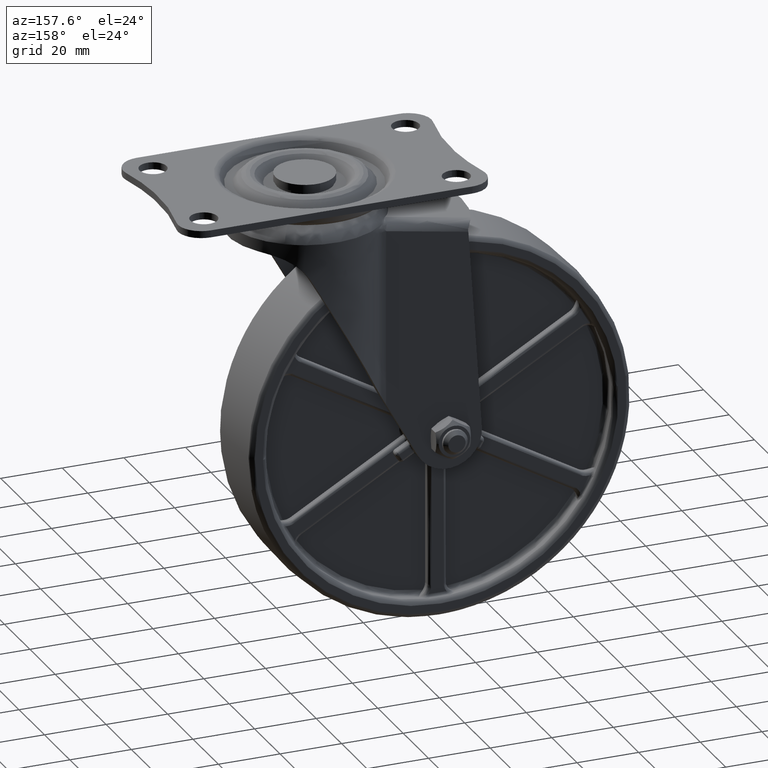
[diagram: clean part render]
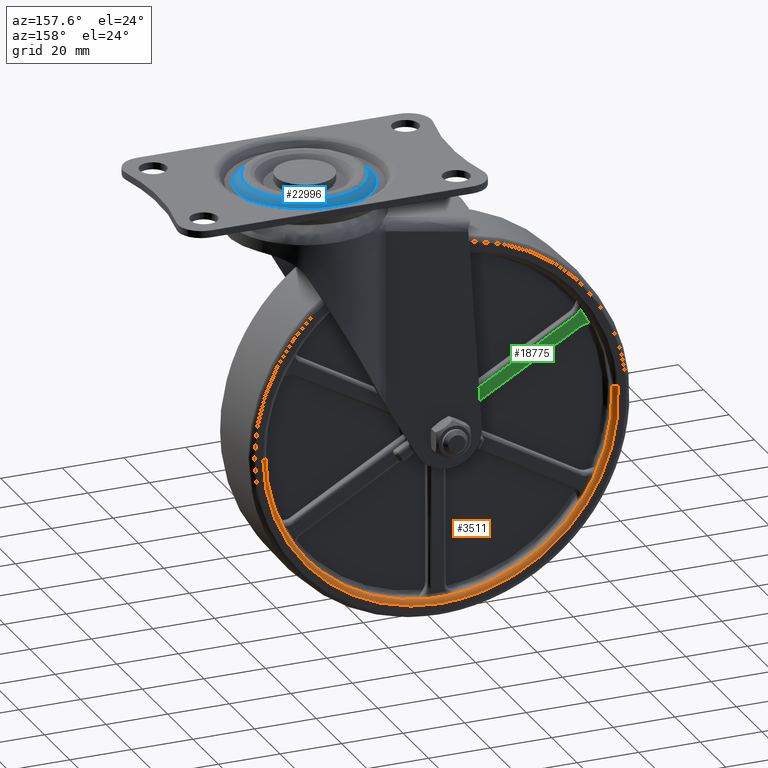
[diagram: same view with three faces highlighted in distinct colors, each labeled with its STEP entity id]
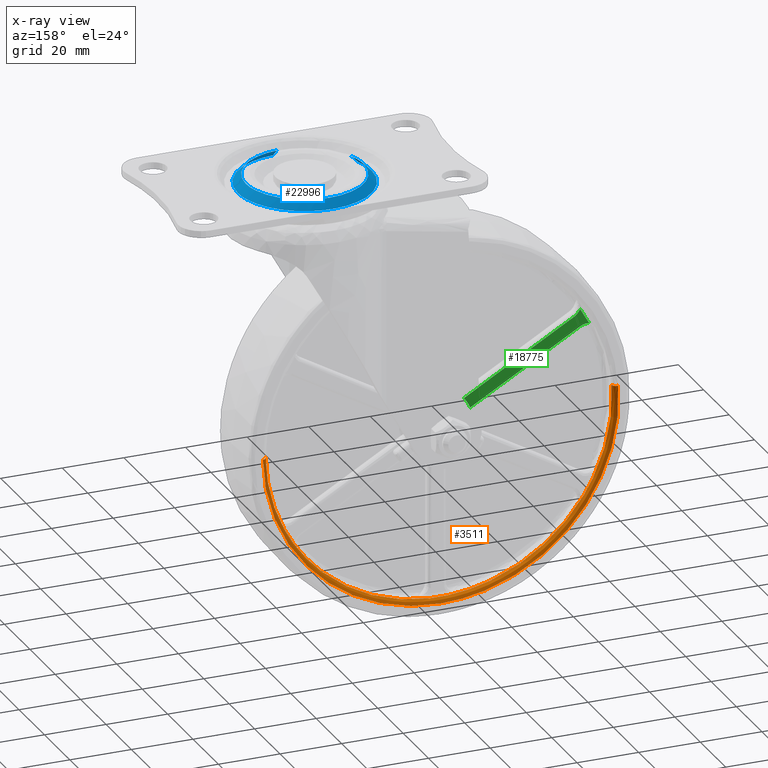
[diagram: x-ray of the same camera — body ghosted, the three highlighted faces saturated]
A machine part, auxiliary view with three faces highlighted in distinct colors.
The next image is the same camera in x-ray (body ghosted, the three faces saturated) — at least one of them is partly hidden behind the body in this view.
Their STEP definitions:

[orange] entity #3511 — the highlighted face is a freeform B-spline surface patch.
#3313=CARTESIAN_POINT('',(-56.109316482001937,10.895694304718960,3.922229964776119));
#3314=CARTESIAN_POINT('',(-56.221568910168422,10.895694304718960,2.316406982842156));
#3315=CARTESIAN_POINT('',(-56.241796987464895,10.895694304718962,0.706792469418074));
#3316=CARTESIAN_POINT('',(-56.948589456882956,10.895694304718960,-55.535004518046804));
#3317=CARTESIAN_POINT('',(-0.706792469418077,10.895694304718962,-56.241796987464895));
#3318=CARTESIAN_POINT('',(55.535004518046804,10.895694304718960,-56.948589456882956));
#3319=CARTESIAN_POINT('',(56.241796987464895,10.895694304718962,-0.706792469418080));
#3320=CARTESIAN_POINT('',(-55.989671686831315,12.616306535089228,3.913866391127913));
#3321=CARTESIAN_POINT('',(-56.101684753344230,12.616306535089230,2.311467588524587));
#3322=CARTESIAN_POINT('',(-56.121869697266099,12.616306535089230,0.705285339309675));
#3323=CARTESIAN_POINT('',(-56.827155036575761,12.616306535089226,-55.416584357956424));
#3324=CARTESIAN_POINT('',(-0.705285339309679,12.616306535089230,-56.121869697266099));
#3325=CARTESIAN_POINT('',(55.416584357956424,12.616306535089226,-56.827155036575782));
#3326=CARTESIAN_POINT('',(56.121869697266099,12.616306535089230,-0.705285339309682));
#3327=CARTESIAN_POINT('',(-57.706095338485859,12.496368998980220,4.033850178150686));
#3328=CARTESIAN_POINT('',(-57.821542286121215,12.496368998980227,2.382328115465480));
#3329=CARTESIAN_POINT('',(-57.842346021225673,12.496368998980227,0.726906620540389));
#3330=CARTESIAN_POINT('',(-58.569252641766049,12.496368998980223,-57.115439400685261));
#3331=CARTESIAN_POINT('',(-0.726906620540393,12.496368998980227,-57.842346021225673));
#3332=CARTESIAN_POINT('',(57.115439400685261,12.496368998980223,-58.569252641766056));
#3333=CARTESIAN_POINT('',(57.842346021225673,12.496368998980227,-0.726906620540397));
#3341=(BOUNDED_SURFACE()B_SPLINE_SURFACE(2,2,((#3313,#3320,#3327),(#3314,#3321,#3328),(#3315,#3322,#3329),(#3316,#3323,#3330),(#3317,#3324,#3331),(#3318,#3325,#3332),(#3319,#3326,#3333)),.UNSPECIFIED.,.F.,.F.,.U.)B_SPLINE_SURFACE_WITH_KNOTS((3,2,2,3),(3,3),(0.0,3.833752513351001,99.677656750995880,195.521560988640690),(0.0,2.733561761093828),.UNSPECIFIED.)GEOMETRIC_REPRESENTATION_ITEM()RATIONAL_B_SPLINE_SURFACE(((0.889999308491947,0.584039666282875,0.889999491412450),(0.899812879610098,0.590479575557186,0.899813064547572),(0.910479803853933,0.597479476361818,0.910479990983768),(0.643806443438514,0.422481789355229,0.643806575759289),(0.910479803853933,0.597479476361818,0.910479990983768),(0.643806443438514,0.422481789355229,0.643806575759289),(0.910479803853933,0.597479476361818,0.910479990983768)))REPRESENTATION_ITEM('')SURFACE());
#3342=CARTESIAN_POINT('',(-57.602042656929051,12.500000000000000,4.026579740403182));
#3343=VERTEX_POINT('',#3342);
#3344=CARTESIAN_POINT('',(0.0,12.500000000000000,-57.742607000000000));
#3345=VERTEX_POINT('',#3344);
#3346=CARTESIAN_POINT('',(-57.602042656929051,12.500000000000002,4.026579740403182));
#3347=CARTESIAN_POINT('',(-57.742607000000000,12.500000000000002,2.015743358823668));
#3348=CARTESIAN_POINT('',(-57.742607000000000,12.500000000000000,1.855278E-015));
#3349=CARTESIAN_POINT('',(-57.742607000000000,12.500000000000000,-57.742607000000000));
#3350=CARTESIAN_POINT('',(0.0,12.500000000000000,-57.742607000000000));
#3358=(BOUNDED_CURVE()B_SPLINE_CURVE(2,(#3346,#3347,#3348,#3349,#3350),.UNSPECIFIED.,.F.,.U.)B_SPLINE_CURVE_WITH_KNOTS((3,2,3),(0.737833686534226,0.750000000000000,1.0),.UNSPECIFIED.)CURVE()GEOMETRIC_REPRESENTATION_ITEM()RATIONAL_B_SPLINE_CURVE((0.972879876385145,0.985746277151664,1.0,0.707106781186548,1.0))REPRESENTATION_ITEM(''));
#3359=EDGE_CURVE('',#3343,#3345,#3358,.T.);
#3360=ORIENTED_EDGE('',*,*,#3359,.F.);
#3361=CARTESIAN_POINT('',(-56.105694150497627,11.000000000136920,3.921979863189565));
#3362=VERTEX_POINT('',#3361);
#3363=CARTESIAN_POINT('',(-56.105694150497627,11.000000000136918,3.921979863189565));
#3364=CARTESIAN_POINT('',(-56.105694150770780,12.499999991341772,3.921979863208824));
#3365=CARTESIAN_POINT('',(-57.602042656929051,12.499999999999996,4.026579740403182));
#3373=(BOUNDED_CURVE()B_SPLINE_CURVE(2,(#3363,#3364,#3365),.UNSPECIFIED.,.F.,.U.)B_SPLINE_CURVE_WITH_KNOTS((3,3),(-1.725134643094601,-0.274865362637500),.UNSPECIFIED.)CURVE()GEOMETRIC_REPRESENTATION_ITEM()RATIONAL_B_SPLINE_CURVE((0.863472075307408,0.610566960926146,0.863472073308224))REPRESENTATION_ITEM(''));
#3374=EDGE_CURVE('',#3362,#3343,#3373,.T.);
#3375=ORIENTED_EDGE('',*,*,#3374,.F.);
#3376=CARTESIAN_POINT('',(-50.125580031458398,11.0,-25.507980489766400));
#3377=VERTEX_POINT('',#3376);
#3378=CARTESIAN_POINT('',(-56.105694150497627,11.000000000136922,3.921979863189565));
#3379=CARTESIAN_POINT('',(-57.192226461886982,11.000000000000002,-11.621355817751464));
#3380=CARTESIAN_POINT('',(-50.125580031458433,11.0,-25.507980489766410));
#3388=(BOUNDED_CURVE()B_SPLINE_CURVE(2,(#3378,#3379,#3380),.UNSPECIFIED.,.F.,.U.)B_SPLINE_CURVE_WITH_KNOTS((3,3),(0.427214556088563,1.0),.UNSPECIFIED.)CURVE()GEOMETRIC_REPRESENTATION_ITEM()RATIONAL_B_SPLINE_CURVE((0.946771655131407,0.937703029882766,1.0))REPRESENTATION_ITEM(''));
#3389=EDGE_CURVE('',#3362,#3377,#3388,.T.);
#3390=ORIENTED_EDGE('',*,*,#3389,.T.);
#3391=CARTESIAN_POINT('',(-47.153349119104803,11.0,-30.656035441789751));
#3392=VERTEX_POINT('',#3391);
#3393=CARTESIAN_POINT('',(-50.125580031458433,11.0,-25.507980489766410));
#3394=CARTESIAN_POINT('',(-48.775683538732736,11.0,-28.160654020995320));
#3395=CARTESIAN_POINT('',(-47.153349119104782,11.0,-30.656035441789740));
#3403=(BOUNDED_CURVE()B_SPLINE_CURVE(2,(#3393,#3394,#3395),.UNSPECIFIED.,.F.,.U.)CURVE()GEOMETRIC_REPRESENTATION_ITEM()QUASI_UNIFORM_CURVE()RATIONAL_B_SPLINE_CURVE((1.0,0.998602641793546,1.0))REPRESENTATION_ITEM(''));
#3404=EDGE_CURVE('',#3377,#3392,#3403,.T.);
#3405=ORIENTED_EDGE('',*,*,#3404,.T.);
#3406=CARTESIAN_POINT('',(-2.972230912353660,11.0,-56.164015931556207));
#3407=VERTEX_POINT('',#3406);
#3408=CARTESIAN_POINT('',(-47.153349119104782,11.0,-30.656035441789740));
#3409=CARTESIAN_POINT('',(-31.553059736877170,10.999999999999998,-54.651502598527102));
#3410=CARTESIAN_POINT('',(-2.972230912353648,11.0,-56.164015931556200));
#3418=(BOUNDED_CURVE()B_SPLINE_CURVE(2,(#3408,#3409,#3410),.UNSPECIFIED.,.F.,.U.)CURVE()GEOMETRIC_REPRESENTATION_ITEM()QUASI_UNIFORM_CURVE()RATIONAL_B_SPLINE_CURVE((1.0,0.891238559255591,1.0))REPRESENTATION_ITEM(''));
#3419=EDGE_CURVE('',#3392,#3407,#3418,.T.);
#3420=ORIENTED_EDGE('',*,*,#3419,.T.);
#3421=CARTESIAN_POINT('',(2.972230912353665,11.0,-56.164015931556207));
#3422=VERTEX_POINT('',#3421);
#3423=CARTESIAN_POINT('',(-2.972230912353648,11.0,-56.164015931556200));
#3424=CARTESIAN_POINT('',(2.255141E-014,11.000000000000002,-56.321308041990690));
#3425=CARTESIAN_POINT('',(2.972230912353671,11.0,-56.164015931556200));
#3433=(BOUNDED_CURVE()B_SPLINE_CURVE(2,(#3423,#3424,#3425),.UNSPECIFIED.,.F.,.U.)CURVE()GEOMETRIC_REPRESENTATION_ITEM()QUASI_UNIFORM_CURVE()RATIONAL_B_SPLINE_CURVE((1.0,0.998602641793546,1.0))REPRESENTATION_ITEM(''));
#3434=EDGE_CURVE('',#3407,#3422,#3433,.T.);
#3435=ORIENTED_EDGE('',*,*,#3434,.T.);
#3436=CARTESIAN_POINT('',(47.153349119104803,11.0,-30.656035441789751));
#3437=VERTEX_POINT('',#3436);
#3438=CARTESIAN_POINT('',(2.972230912353665,11.0,-56.164015931556200));
#3439=CARTESIAN_POINT('',(31.553059736877174,11.0,-54.651502598527088));
#3440=CARTESIAN_POINT('',(47.153349119104789,11.0,-30.656035441789740));
#3448=(BOUNDED_CURVE()B_SPLINE_CURVE(2,(#3438,#3439,#3440),.UNSPECIFIED.,.F.,.U.)CURVE()GEOMETRIC_REPRESENTATION_ITEM()QUASI_UNIFORM_CURVE()RATIONAL_B_SPLINE_CURVE((1.0,0.891238559255591,1.0))REPRESENTATION_ITEM(''));
#3449=EDGE_CURVE('',#3422,#3437,#3448,.T.);
#3450=ORIENTED_EDGE('',*,*,#3449,.T.);
#3451=CARTESIAN_POINT('',(50.125580031458398,11.0,-25.507980489766449));
#3452=VERTEX_POINT('',#3451);
#3453=CARTESIAN_POINT('',(47.153349119104789,11.0,-30.656035441789740));
#3454=CARTESIAN_POINT('',(48.775683538732757,10.999999999999998,-28.160654020995295));
#3455=CARTESIAN_POINT('',(50.125580031458419,11.0,-25.507980489766460));
#3463=(BOUNDED_CURVE()B_SPLINE_CURVE(2,(#3453,#3454,#3455),.UNSPECIFIED.,.F.,.U.)CURVE()GEOMETRIC_REPRESENTATION_ITEM()QUASI_UNIFORM_CURVE()RATIONAL_B_SPLINE_CURVE((1.0,0.998602641793547,1.0))REPRESENTATION_ITEM(''));
#3464=EDGE_CURVE('',#3437,#3452,#3463,.T.);
#3465=ORIENTED_EDGE('',*,*,#3464,.T.);
#3466=CARTESIAN_POINT('',(56.238166320184853,11.000000000303331,-0.706746842705730));
#3467=VERTEX_POINT('',#3466);
#3468=CARTESIAN_POINT('',(50.125580031458419,11.0,-25.507980489766460));
#3469=CARTESIAN_POINT('',(56.073371508263527,11.0,-13.820011001134066));
#3470=CARTESIAN_POINT('',(56.238166320184845,11.000000000303327,-0.706746842705730));
#3478=(BOUNDED_CURVE()B_SPLINE_CURVE(2,(#3468,#3469,#3470),.UNSPECIFIED.,.F.,.U.)B_SPLINE_CURVE_WITH_KNOTS((3,3),(0.0,0.486899397519960),.UNSPECIFIED.)CURVE()GEOMETRIC_REPRESENTATION_ITEM()RATIONAL_B_SPLINE_CURVE((1.0,0.947044120028145,0.945656612163161))REPRESENTATION_ITEM(''));
#3479=EDGE_CURVE('',#3452,#3467,#3478,.T.);
#3480=ORIENTED_EDGE('',*,*,#3479,.T.);
#3481=CARTESIAN_POINT('',(57.738047871899283,12.500000000000000,-0.725595902805529));
#3482=VERTEX_POINT('',#3481);
#3483=CARTESIAN_POINT('',(56.238166320184845,11.000000000303327,-0.706746842705730));
#3484=CARTESIAN_POINT('',(56.238166320791450,12.499999970826629,-0.706746842713353));
#3485=CARTESIAN_POINT('',(57.738047871899283,12.499999999999998,-0.725595902805529));
#3493=(BOUNDED_CURVE()B_SPLINE_CURVE(2,(#3483,#3484,#3485),.UNSPECIFIED.,.F.,.U.)B_SPLINE_CURVE_WITH_KNOTS((3,3),(-1.725134642867066,-0.274865376662953),.UNSPECIFIED.)CURVE()GEOMETRIC_REPRESENTATION_ITEM()RATIONAL_B_SPLINE_CURVE((0.883342149505079,0.624617227759674,0.883342142536852))REPRESENTATION_ITEM(''));
#3494=EDGE_CURVE('',#3467,#3482,#3493,.T.);
#3495=ORIENTED_EDGE('',*,*,#3494,.T.);
#3496=CARTESIAN_POINT('',(0.0,12.500000000000000,-57.742607000000000));
#3497=CARTESIAN_POINT('',(57.021513275544734,12.499999999999998,-57.742607000000007));
#3498=CARTESIAN_POINT('',(57.738047871899283,12.500000000000002,-0.725595902805529));
#3506=(BOUNDED_CURVE()B_SPLINE_CURVE(2,(#3496,#3497,#3498),.UNSPECIFIED.,.F.,.U.)B_SPLINE_CURVE_WITH_KNOTS((3,3),(0.0,0.247784295918938),.UNSPECIFIED.)CURVE()GEOMETRIC_REPRESENTATION_ITEM()RATIONAL_B_SPLINE_CURVE((1.0,0.709702639987509,0.994854295637589))REPRESENTATION_ITEM(''));
#3507=EDGE_CURVE('',#3345,#3482,#3506,.T.);
#3508=ORIENTED_EDGE('',*,*,#3507,.F.);
#3509=EDGE_LOOP('',(#3360,#3375,#3390,#3405,#3420,#3435,#3450,#3465,#3480,#3495,#3508));
#3510=FACE_OUTER_BOUND('',#3509,.T.);
#3511=ADVANCED_FACE('',(#3510),#3341,.T.);

[blue] entity #22996 — the highlighted face is a freeform B-spline surface patch.
#22830=CARTESIAN_POINT('',(21.147844019462269,-6.705316435115614,84.979582080494708));
#22831=CARTESIAN_POINT('',(20.140563976395839,-4.023545840258584,84.979582080494723));
#22832=CARTESIAN_POINT('',(19.965678219664490,-1.164188992872753,84.979582080494708));
#22833=CARTESIAN_POINT('',(18.801489226791741,17.870132787462762,84.979582080494708));
#22834=CARTESIAN_POINT('',(37.835811007127248,19.034321780335510,84.979582080494708));
#22835=CARTESIAN_POINT('',(56.870132787462751,20.198510773208262,84.979582080494708));
#22836=CARTESIAN_POINT('',(58.034321780335503,1.164188992872753,84.979582080494708));
#22837=CARTESIAN_POINT('',(59.198510773208255,-17.870132787462762,84.979582080494708));
#22838=CARTESIAN_POINT('',(40.164188992872752,-19.034321780335510,84.979582080494708));
#22839=CARTESIAN_POINT('',(18.576152990161336,-7.671250305714221,82.232470325841035));
#22840=CARTESIAN_POINT('',(17.423769293868276,-4.603157443173919,82.232470325841035));
#22841=CARTESIAN_POINT('',(17.223690382190899,-1.331896153433399,82.232470325841021));
#22842=CARTESIAN_POINT('',(15.891794228757501,20.444413464375707,82.232470325841035));
#22843=CARTESIAN_POINT('',(37.668103846566602,21.776309617809108,82.232470325841021));
#22844=CARTESIAN_POINT('',(59.444413464375700,23.108205771242503,82.232470325841035));
#22845=CARTESIAN_POINT('',(60.776309617809112,1.331896153433399,82.232470325841021));
#22846=CARTESIAN_POINT('',(62.108205771242517,-20.444413464375707,82.232470325841035));
#22847=CARTESIAN_POINT('',(40.331896153433398,-21.776309617809108,82.232470325841021));
#22855=(BOUNDED_SURFACE()B_SPLINE_SURFACE(2,1,((#22830,#22839),(#22831,#22840),(#22832,#22841),(#22833,#22842),(#22834,#22843),(#22835,#22844),(#22836,#22845),(#22837,#22846),(#22838,#22847)),.UNSPECIFIED.,.F.,.F.,.U.)B_SPLINE_SURFACE_WITH_KNOTS((3,2,2,2,3),(2,2),(0.0,7.229518735460286,43.377112412761718,79.524706090063148,115.672299767364610),(0.0,3.885002700785799),.UNSPECIFIED.)GEOMETRIC_REPRESENTATION_ITEM()RATIONAL_B_SPLINE_SURFACE(((0.906274169979695,0.906274169979695),(0.941421356237309,0.941421356237309),(1.0,1.0),(0.707106781186548,0.707106781186548),(1.0,1.0),(0.707106781186548,0.707106781186548),(1.0,1.0),(0.707106781186548,0.707106781186548),(1.0,1.0)))REPRESENTATION_ITEM('')SURFACE());
#22856=CARTESIAN_POINT('',(21.086649701054650,-6.728301181363504,84.914213562342240));
#22857=VERTEX_POINT('',#22856);
#22858=CARTESIAN_POINT('',(19.864740510808900,0.0,84.914213562373206));
#22859=VERTEX_POINT('',#22858);
#22860=CARTESIAN_POINT('',(21.086649701054647,-6.728301181363504,84.914213562342240));
#22861=CARTESIAN_POINT('',(19.864740510808897,-3.475104457878975,84.914213562373206));
#22862=CARTESIAN_POINT('',(19.864740510808900,0.0,84.914213562373206));
#22870=(BOUNDED_CURVE()B_SPLINE_CURVE(2,(#22860,#22861,#22862),.UNSPECIFIED.,.F.,.U.)B_SPLINE_CURVE_WITH_KNOTS((3,3),(0.440284170893511,0.500000000000000),.UNSPECIFIED.)CURVE()GEOMETRIC_REPRESENTATION_ITEM()RATIONAL_B_SPLINE_CURVE((0.893499554629159,0.930038554395545,1.0))REPRESENTATION_ITEM(''));
#22871=EDGE_CURVE('',#22857,#22859,#22870,.T.);
#22872=ORIENTED_EDGE('',*,*,#22871,.T.);
#22873=CARTESIAN_POINT('',(27.216632078942698,15.076816506009219,84.914213567593961));
#22874=VERTEX_POINT('',#22873);
#22875=CARTESIAN_POINT('',(19.864740510808900,0.0,84.914213562373206));
#22876=CARTESIAN_POINT('',(19.864740510808904,9.330905681237470,84.914213562373206));
#22877=CARTESIAN_POINT('',(27.216632078942702,15.076816506009225,84.914213567593961));
#22885=(BOUNDED_CURVE()B_SPLINE_CURVE(2,(#22875,#22876,#22877),.UNSPECIFIED.,.F.,.U.)B_SPLINE_CURVE_WITH_KNOTS((3,3),(0.500000000000000,0.643432082111854),.UNSPECIFIED.)CURVE()GEOMETRIC_REPRESENTATION_ITEM()RATIONAL_B_SPLINE_CURVE((1.0,0.831958863156575,0.856737647416313))REPRESENTATION_ITEM(''));
#22886=EDGE_CURVE('',#22859,#22874,#22885,.T.);
#22887=ORIENTED_EDGE('',*,*,#22886,.T.);
#22888=CARTESIAN_POINT('',(52.615419818519470,13.445389501495431,84.914213563345726));
#22889=VERTEX_POINT('',#22888);
#22890=CARTESIAN_POINT('',(27.216632078942702,15.076816506009225,84.914213567593961));
#22891=CARTESIAN_POINT('',(32.409408920526985,19.135259489191100,84.914213562373206));
#22892=CARTESIAN_POINT('',(39.0,19.135259489191100,84.914213562373206));
#22893=CARTESIAN_POINT('',(46.996605327406101,19.135259489191103,84.914213562373206));
#22894=CARTESIAN_POINT('',(52.615419818519470,13.445389501495427,84.914213563345740));
#22902=(BOUNDED_CURVE()B_SPLINE_CURVE(2,(#22890,#22891,#22892,#22893,#22894),.UNSPECIFIED.,.F.,.U.)B_SPLINE_CURVE_WITH_KNOTS((3,2,3),(0.643432082111854,0.750000000000000,0.875948062567848),.UNSPECIFIED.)CURVE()GEOMETRIC_REPRESENTATION_ITEM()RATIONAL_B_SPLINE_CURVE((0.856737647416313,0.875147918029973,1.0,0.852442666204740,0.853561814883001))REPRESENTATION_ITEM(''));
#22903=EDGE_CURVE('',#22874,#22889,#22902,.T.);
#22904=ORIENTED_EDGE('',*,*,#22903,.T.);
#22905=CARTESIAN_POINT('',(58.135259489191100,0.0,84.914213562373206));
#22906=VERTEX_POINT('',#22905);
#22907=CARTESIAN_POINT('',(52.615419818519470,13.445389501495427,84.914213563345740));
#22908=CARTESIAN_POINT('',(58.135259489191100,7.855745972010359,84.914213562373192));
#22909=CARTESIAN_POINT('',(58.135259489191100,0.0,84.914213562373206));
#22917=(BOUNDED_CURVE()B_SPLINE_CURVE(2,(#22907,#22908,#22909),.UNSPECIFIED.,.F.,.U.)B_SPLINE_CURVE_WITH_KNOTS((3,3),(0.875948062567848,1.0),.UNSPECIFIED.)CURVE()GEOMETRIC_REPRESENTATION_ITEM()RATIONAL_B_SPLINE_CURVE((0.853561814883001,0.854664114981808,1.0))REPRESENTATION_ITEM(''));
#22918=EDGE_CURVE('',#22889,#22906,#22917,.T.);
#22919=ORIENTED_EDGE('',*,*,#22918,.T.);
#22920=CARTESIAN_POINT('',(40.168179645664416,-19.099568373010150,84.914213562342979));
#22921=VERTEX_POINT('',#22920);
#22922=CARTESIAN_POINT('',(58.135259489191100,0.0,84.914213562373206));
#22923=CARTESIAN_POINT('',(58.135259489191100,-18.000654692868238,84.914213562373206));
#22924=CARTESIAN_POINT('',(40.168179645664424,-19.099568373010147,84.914213562342979));
#22932=(BOUNDED_CURVE()B_SPLINE_CURVE(2,(#22922,#22923,#22924),.UNSPECIFIED.,.F.,.U.)B_SPLINE_CURVE_WITH_KNOTS((3,3),(0.0,0.239332962237868),.UNSPECIFIED.)CURVE()GEOMETRIC_REPRESENTATION_ITEM()RATIONAL_B_SPLINE_CURVE((1.0,0.719603993287970,0.976072041664413))REPRESENTATION_ITEM(''));
#22933=EDGE_CURVE('',#22906,#22921,#22932,.T.);
#22934=ORIENTED_EDGE('',*,*,#22933,.T.);
#22935=CARTESIAN_POINT('',(40.327805735063869,-21.709431865688298,82.299473051540588));
#22936=VERTEX_POINT('',#22935);
#22937=CARTESIAN_POINT('',(40.168179645664416,-19.099568373010150,84.914213562342979));
#22938=CARTESIAN_POINT('',(40.327805735063869,-21.709431865688298,82.299473051540588));
#22939=QUASI_UNIFORM_CURVE('',1,(#22937,#22938),.UNSPECIFIED.,.F.,.U.);
#22940=EDGE_CURVE('',#22921,#22936,#22939,.T.);
#22941=ORIENTED_EDGE('',*,*,#22940,.T.);
#22942=CARTESIAN_POINT('',(60.750000000000000,0.0,82.299473051564291));
#22943=VERTEX_POINT('',#22942);
#22944=CARTESIAN_POINT('',(60.750000000000000,0.0,82.299473051564291));
#22945=CARTESIAN_POINT('',(60.750000000000007,-20.460356954860288,82.299473051564291));
#22946=CARTESIAN_POINT('',(40.327805735063869,-21.709431865688291,82.299473051540588));
#22954=(BOUNDED_CURVE()B_SPLINE_CURVE(2,(#22944,#22945,#22946),.UNSPECIFIED.,.F.,.U.)B_SPLINE_CURVE_WITH_KNOTS((3,3),(0.500000000000000,0.739332962239118),.UNSPECIFIED.)CURVE()GEOMETRIC_REPRESENTATION_ITEM()RATIONAL_B_SPLINE_CURVE((1.0,0.719603993286505,0.976072041667094))REPRESENTATION_ITEM(''));
#22955=EDGE_CURVE('',#22943,#22936,#22954,.T.);
#22956=ORIENTED_EDGE('',*,*,#22955,.F.);
#22957=CARTESIAN_POINT('',(17.250000000000000,0.0,82.299473051564291));
#22958=VERTEX_POINT('',#22957);
#22959=CARTESIAN_POINT('',(17.250000000000000,0.0,82.299473051564291));
#22960=CARTESIAN_POINT('',(17.249999999999996,21.750000000000004,82.299473051564291));
#22961=CARTESIAN_POINT('',(39.0,21.750000000000000,82.299473051564291));
#22962=CARTESIAN_POINT('',(60.750000000000007,21.750000000000004,82.299473051564291));
#22963=CARTESIAN_POINT('',(60.750000000000000,0.0,82.299473051564291));
#22971=(BOUNDED_CURVE()B_SPLINE_CURVE(2,(#22959,#22960,#22961,#22962,#22963),.UNSPECIFIED.,.F.,.U.)B_SPLINE_CURVE_WITH_KNOTS((3,2,3),(0.0,0.250000000000000,0.500000000000000),.UNSPECIFIED.)CURVE()GEOMETRIC_REPRESENTATION_ITEM()RATIONAL_B_SPLINE_CURVE((1.0,0.707106781186547,1.0,0.707106781186547,1.0))REPRESENTATION_ITEM(''));
#22972=EDGE_CURVE('',#22958,#22943,#22971,.T.);
#22973=ORIENTED_EDGE('',*,*,#22972,.F.);
#22974=CARTESIAN_POINT('',(18.638877161666390,-7.647690943233527,82.299473051542975));
#22975=VERTEX_POINT('',#22974);
#22976=CARTESIAN_POINT('',(18.638877161666393,-7.647690943233526,82.299473051542975));
#22977=CARTESIAN_POINT('',(17.249999999999996,-3.949960647183042,82.299473051564291));
#22978=CARTESIAN_POINT('',(17.250000000000000,0.0,82.299473051564291));
#22986=(BOUNDED_CURVE()B_SPLINE_CURVE(2,(#22976,#22977,#22978),.UNSPECIFIED.,.F.,.U.)B_SPLINE_CURVE_WITH_KNOTS((3,3),(0.940284170895662,1.0),.UNSPECIFIED.)CURVE()GEOMETRIC_REPRESENTATION_ITEM()RATIONAL_B_SPLINE_CURVE((0.893499554631791,0.930038554398065,1.0))REPRESENTATION_ITEM(''));
#22987=EDGE_CURVE('',#22975,#22958,#22986,.T.);
#22988=ORIENTED_EDGE('',*,*,#22987,.F.);
#22989=CARTESIAN_POINT('',(21.086649701054650,-6.728301181363504,84.914213562342240));
#22990=CARTESIAN_POINT('',(18.638877161666390,-7.647690943233527,82.299473051542975));
#22991=QUASI_UNIFORM_CURVE('',1,(#22989,#22990),.UNSPECIFIED.,.F.,.U.);
#22992=EDGE_CURVE('',#22857,#22975,#22991,.T.);
#22993=ORIENTED_EDGE('',*,*,#22992,.F.);
#22994=EDGE_LOOP('',(#22872,#22887,#22904,#22919,#22934,#22941,#22956,#22973,#22988,#22993));
#22995=FACE_OUTER_BOUND('',#22994,.T.);
#22996=ADVANCED_FACE('',(#22995),#22855,.T.);

[green] entity #18775 — the highlighted face is a freeform B-spline surface patch.
#4132=CARTESIAN_POINT('',(-8.576490009895410,10.0,7.261039892673760));
#4133=VERTEX_POINT('',#4132);
#4196=CARTESIAN_POINT('',(-10.576490009895400,10.0,3.796938277536005));
#4197=VERTEX_POINT('',#4196);
#4211=CARTESIAN_POINT('',(-8.576490009895400,10.0,7.261039892673757));
#4212=CARTESIAN_POINT('',(-9.889757187838475,10.0,5.709853974618594));
#4213=CARTESIAN_POINT('',(-10.576490009895400,10.0,3.796938277536009));
#4221=(BOUNDED_CURVE()B_SPLINE_CURVE(2,(#4211,#4212,#4213),.UNSPECIFIED.,.F.,.U.)CURVE()GEOMETRIC_REPRESENTATION_ITEM()QUASI_UNIFORM_CURVE()RATIONAL_B_SPLINE_CURVE((1.0,0.984034591837627,1.0))REPRESENTATION_ITEM(''));
#4222=EDGE_CURVE('',#4133,#4197,#4221,.T.);
#10630=CARTESIAN_POINT('',(-49.234341472202800,10.0,25.054445672474550));
#10631=VERTEX_POINT('',#10630);
#10758=CARTESIAN_POINT('',(-46.314957166201403,10.0,30.110967617288150));
#10759=VERTEX_POINT('',#10758);
#10773=CARTESIAN_POINT('',(-49.234341472202829,10.0,25.054445672474539));
#10774=CARTESIAN_POINT('',(-47.908446293867229,10.0,27.659954364221008));
#10775=CARTESIAN_POINT('',(-46.314957166201417,10.0,30.110967617288178));
#10783=(BOUNDED_CURVE()B_SPLINE_CURVE(2,(#10773,#10774,#10775),.UNSPECIFIED.,.F.,.U.)CURVE()GEOMETRIC_REPRESENTATION_ITEM()QUASI_UNIFORM_CURVE()RATIONAL_B_SPLINE_CURVE((1.0,0.998602641793546,1.0))REPRESENTATION_ITEM(''));
#10784=EDGE_CURVE('',#10631,#10759,#10783,.T.);
#16381=CARTESIAN_POINT('',(-46.272364030027603,10.0,24.405960752018299));
#16382=VERTEX_POINT('',#16381);
#16383=CARTESIAN_POINT('',(-10.576490009895400,10.0,3.796938277536005));
#16384=CARTESIAN_POINT('',(-46.272364030027603,10.0,24.405960752018299));
#16385=QUASI_UNIFORM_CURVE('',1,(#16383,#16384),.UNSPECIFIED.,.F.,.U.);
#16386=EDGE_CURVE('',#4197,#16382,#16385,.T.);
#16443=CARTESIAN_POINT('',(-46.272364030027603,10.0,24.405960752018299));
#16444=CARTESIAN_POINT('',(-47.650181004942787,10.000000000000002,25.201443753379607));
#16445=CARTESIAN_POINT('',(-49.234341472202800,10.0,25.054445672474511));
#16453=(BOUNDED_CURVE()B_SPLINE_CURVE(2,(#16443,#16444,#16445),.UNSPECIFIED.,.F.,.U.)CURVE()GEOMETRIC_REPRESENTATION_ITEM()QUASI_UNIFORM_CURVE()RATIONAL_B_SPLINE_CURVE((1.0,0.952922646073574,1.0))REPRESENTATION_ITEM(''));
#16454=EDGE_CURVE('',#16382,#10631,#16453,.T.);
#16482=CARTESIAN_POINT('',(-44.272364030027603,10.0,27.870062367156049));
#16483=VERTEX_POINT('',#16482);
#16484=CARTESIAN_POINT('',(-44.272364030027603,10.0,27.870062367156049));
#16485=CARTESIAN_POINT('',(-8.576490009895410,10.0,7.261039892673760));
#16486=QUASI_UNIFORM_CURVE('',1,(#16484,#16485),.UNSPECIFIED.,.F.,.U.);
#16487=EDGE_CURVE('',#16483,#4133,#16486,.T.);
#16522=CARTESIAN_POINT('',(-46.314957166201417,10.0,30.110967617288139));
#16523=CARTESIAN_POINT('',(-45.650181004942795,10.0,28.665545368517382));
#16524=CARTESIAN_POINT('',(-44.272364030027603,10.0,27.870062367156059));
#16532=(BOUNDED_CURVE()B_SPLINE_CURVE(2,(#16522,#16523,#16524),.UNSPECIFIED.,.F.,.U.)CURVE()GEOMETRIC_REPRESENTATION_ITEM()QUASI_UNIFORM_CURVE()RATIONAL_B_SPLINE_CURVE((1.0,0.952922646073573,1.0))REPRESENTATION_ITEM(''));
#16533=EDGE_CURVE('',#10759,#16483,#16532,.T.);
#18762=CARTESIAN_POINT('',(-51.265200310608613,10.0,31.425353331807081));
#18763=CARTESIAN_POINT('',(-6.545629353942005,10.0,31.425353331807081));
#18764=CARTESIAN_POINT('',(-51.265200310608613,10.0,2.482551857219815));
#18765=CARTESIAN_POINT('',(-6.545629353942005,10.0,2.482551857219815));
#18766=B_SPLINE_SURFACE_WITH_KNOTS('',1,1,((#18762,#18764),(#18763,#18765)),.UNSPECIFIED.,.F.,.F.,.U.,(2,2),(2,2),(0.0,44.719570956666608),(0.0,28.942801474587259),.UNSPECIFIED.);
#18767=ORIENTED_EDGE('',*,*,#16487,.T.);
#18768=ORIENTED_EDGE('',*,*,#4222,.T.);
#18769=ORIENTED_EDGE('',*,*,#16386,.T.);
#18770=ORIENTED_EDGE('',*,*,#16454,.T.);
#18771=ORIENTED_EDGE('',*,*,#10784,.T.);
#18772=ORIENTED_EDGE('',*,*,#16533,.T.);
#18773=EDGE_LOOP('',(#18767,#18768,#18769,#18770,#18771,#18772));
#18774=FACE_OUTER_BOUND('',#18773,.T.);
#18775=ADVANCED_FACE('',(#18774),#18766,.T.);